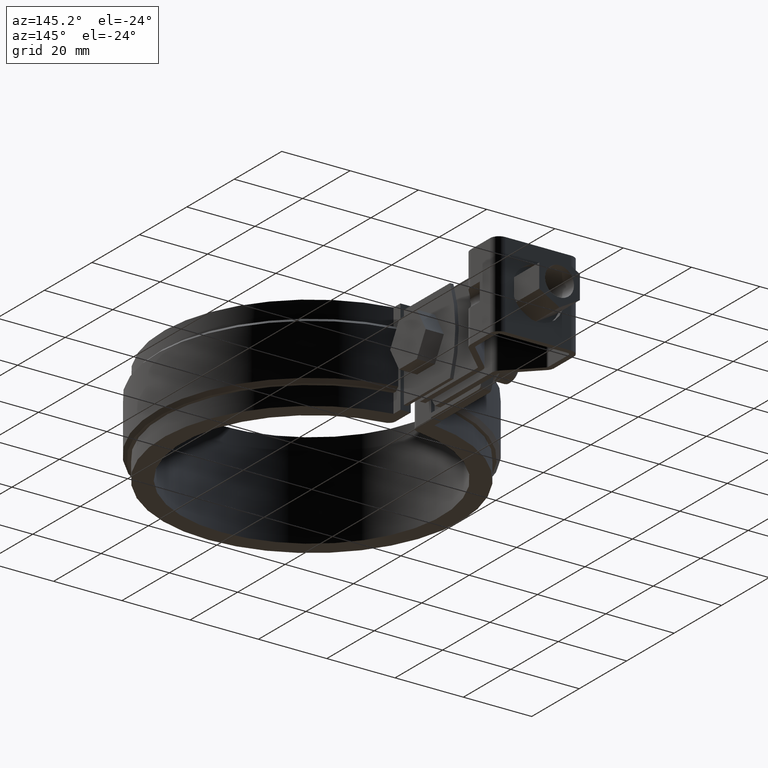
[diagram: clean part render]
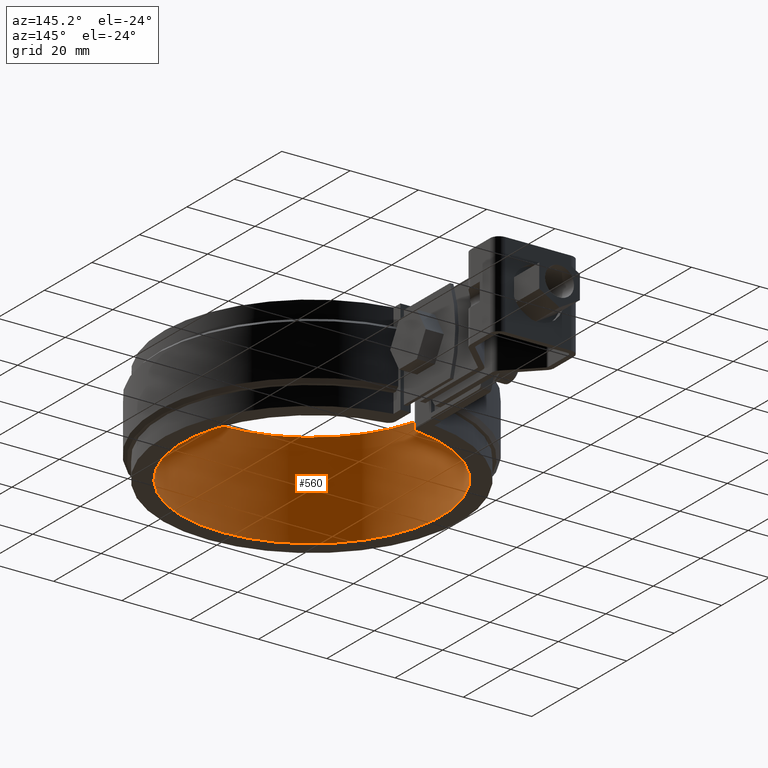
[diagram: same view with one face highlighted and labeled with its STEP entity id]
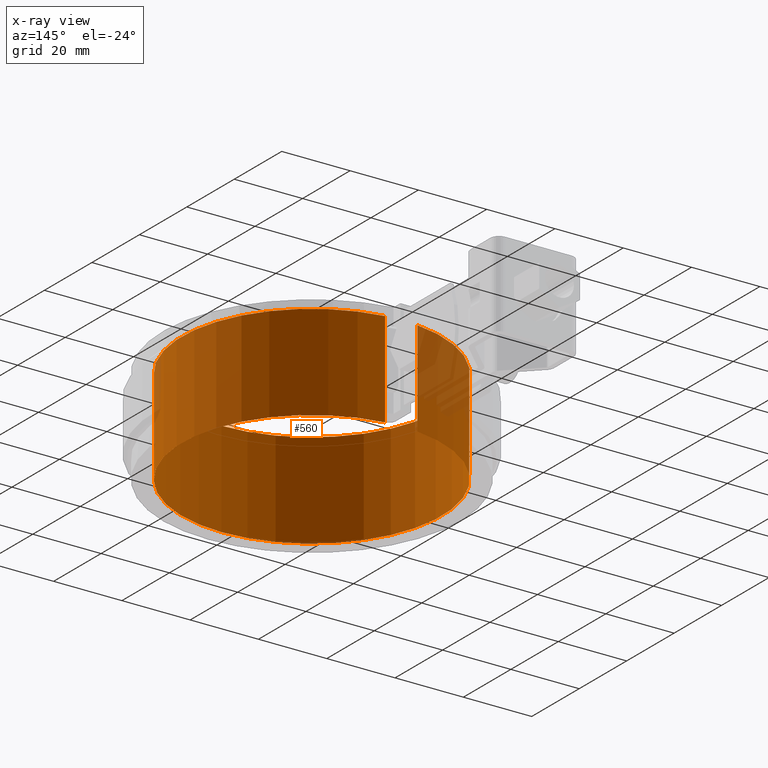
[diagram: x-ray of the same camera — body ghosted, the highlighted face saturated]
A machine part, auxiliary view. The second image highlights one B-rep face of the part: STEP entity #560.
The next image is the same camera in x-ray: the body ghosted, the highlighted face saturated — about 7% of this face is hidden behind the body in this view.
In plain terms, the highlighted cylindrical surface (partial cylindrical patch) has radius 38 mm, axis along (0, 0, -1).
Its self-contained STEP definition (entity closure, byte-faithful):
#560 = ADVANCED_FACE( '', ( #1030 ), #1031, .F. );
#1030 = FACE_OUTER_BOUND( '', #2073, .T. );
#1031 = CYLINDRICAL_SURFACE( '', #2074, 38.0000000000000 );
#2073 = EDGE_LOOP( '', ( #5020, #5021, #5022, #5023 ) );
#2074 = AXIS2_PLACEMENT_3D( '', #5024, #5025, #5026 );
#5020 = ORIENTED_EDGE( '', *, *, #7651, .T. );
#5021 = ORIENTED_EDGE( '', *, *, #7652, .T. );
#5022 = ORIENTED_EDGE( '', *, *, #7653, .F. );
#5023 = ORIENTED_EDGE( '', *, *, #7654, .T. );
#5024 = CARTESIAN_POINT( '', ( 0.000000000000000, 0.000000000000000, -14.0000000000000 ) );
#5025 = DIRECTION( '', ( 0.000000000000000, 0.000000000000000, -1.00000000000000 ) );
#5026 = DIRECTION( '', ( 1.00000000000000, -6.07153216591882E-017, 0.000000000000000 ) );
#7651 = EDGE_CURVE( '', #8921, #8922, #8923, .T. );
#7652 = EDGE_CURVE( '', #8922, #8924, #8925, .T. );
#7653 = EDGE_CURVE( '', #8926, #8924, #8927, .T. );
#7654 = EDGE_CURVE( '', #8926, #8921, #8928, .T. );
#8921 = VERTEX_POINT( '', #12652 );
#8922 = VERTEX_POINT( '', #12653 );
#8923 = CIRCLE( '', #12654, 38.0000000000000 );
#8924 = VERTEX_POINT( '', #12655 );
#8925 = LINE( '', #12656, #12657 );
#8926 = VERTEX_POINT( '', #12658 );
#8927 = CIRCLE( '', #12659, 38.0000000000000 );
#8928 = LINE( '', #12660, #12661 );
#12652 = CARTESIAN_POINT( '', ( 4.75000000000000, 37.7019561826704, -14.0000000000000 ) );
#12653 = CARTESIAN_POINT( '', ( -4.75000000000002, 37.7019561826704, -14.0000000000000 ) );
#12654 = AXIS2_PLACEMENT_3D( '', #14694, #14695, #14696 );
#12655 = CARTESIAN_POINT( '', ( -4.75000000000002, 37.7019561826704, 14.0000000000000 ) );
#12656 = CARTESIAN_POINT( '', ( -4.75000000000002, 37.7019561826704, -14.0000000000000 ) );
#12657 = VECTOR( '', #14697, 1000.00000000000 );
#12658 = CARTESIAN_POINT( '', ( 4.75000000000000, 37.7019561826704, 14.0000000000000 ) );
#12659 = AXIS2_PLACEMENT_3D( '', #14698, #14699, #14700 );
#12660 = CARTESIAN_POINT( '', ( 4.75000000000000, 37.7019561826704, -14.0000000000000 ) );
#12661 = VECTOR( '', #14701, 1000.00000000000 );
#14694 = CARTESIAN_POINT( '', ( 0.000000000000000, 0.000000000000000, -14.0000000000000 ) );
#14695 = DIRECTION( '', ( 0.000000000000000, 0.000000000000000, -1.00000000000000 ) );
#14696 = DIRECTION( '', ( -1.00000000000000, 0.000000000000000, 0.000000000000000 ) );
#14697 = DIRECTION( '', ( 0.000000000000000, 0.000000000000000, 1.00000000000000 ) );
#14698 = CARTESIAN_POINT( '', ( 0.000000000000000, 0.000000000000000, 14.0000000000000 ) );
#14699 = DIRECTION( '', ( 0.000000000000000, 0.000000000000000, -1.00000000000000 ) );
#14700 = DIRECTION( '', ( -1.00000000000000, 0.000000000000000, 0.000000000000000 ) );
#14701 = DIRECTION( '', ( 0.000000000000000, 0.000000000000000, -1.00000000000000 ) );